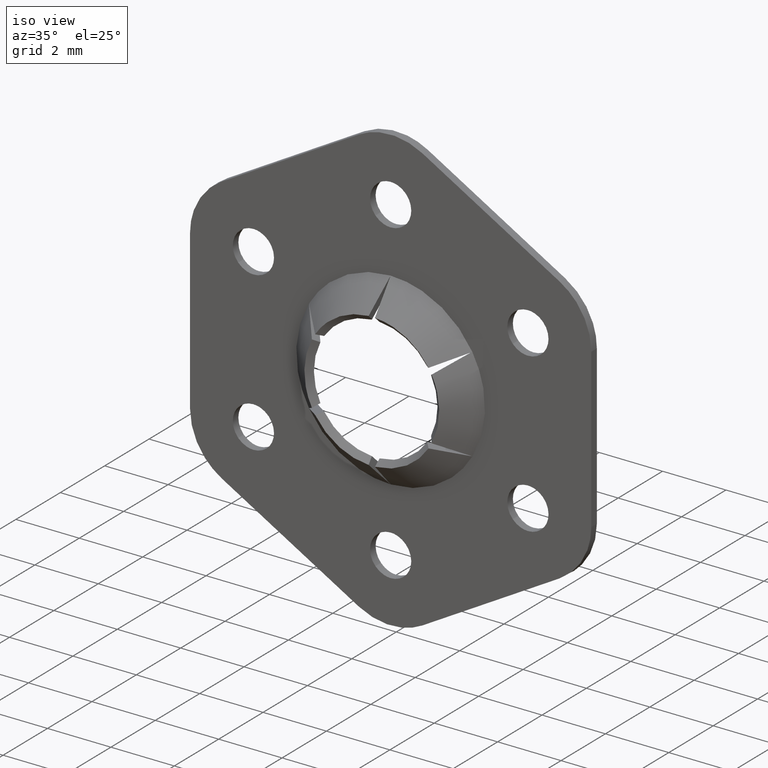
[diagram: clean part render]
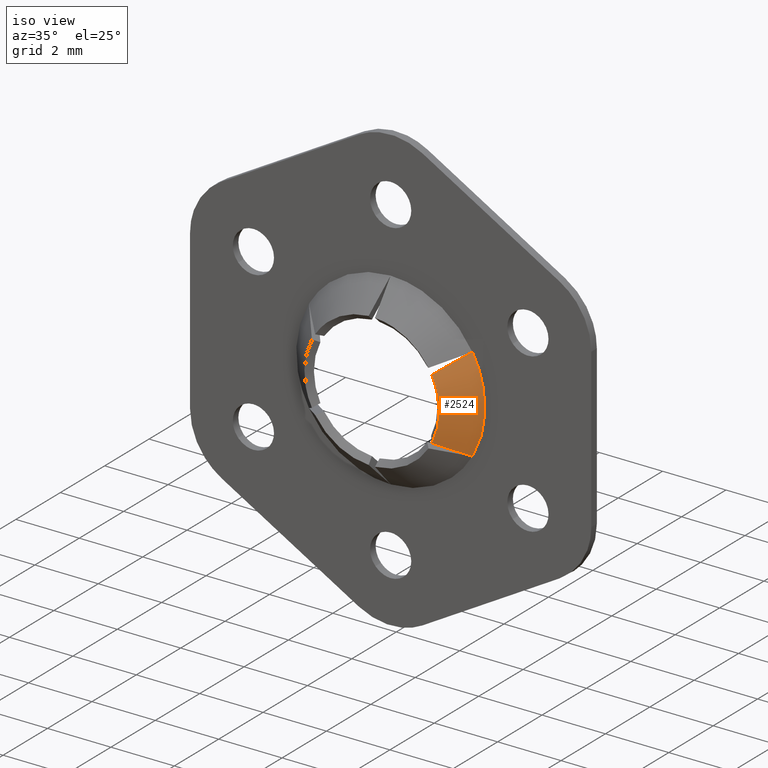
[diagram: same view with one face highlighted and labeled with its STEP entity id]
A machine part, iso view. The second image highlights one B-rep face of the part: STEP entity #2524.
In plain terms, the highlighted face is a freeform B-spline surface patch.
Its self-contained STEP definition (entity closure, byte-faithful):
#1563=CARTESIAN_POINT('',(2.577964239538090,-0.249999999998793,-1.488388347658600));
#1564=VERTEX_POINT('',#1563);
#1565=CARTESIAN_POINT('',(1.889805515215465,-1.100000000000000,-0.975609669087775));
#1566=VERTEX_POINT('',#1565);
#1567=CARTESIAN_POINT('',(2.577964239538090,-0.249999999998793,-1.488388347658600));
#1568=CARTESIAN_POINT('',(2.348891921161704,-0.533728600864767,-1.317696039964877));
#1569=CARTESIAN_POINT('',(2.119632591761006,-0.817221731978935,-1.146864381765905));
#1570=CARTESIAN_POINT('',(1.889805515215463,-1.100000000000000,-0.975609669087777));
#1571=QUASI_UNIFORM_CURVE('',3,(#1567,#1568,#1569,#1570),.UNSPECIFIED.,.F.,.U.);
#1572=EDGE_CURVE('',#1564,#1566,#1571,.T.);
#2471=CARTESIAN_POINT('',(1.789375178040802,-1.121250000000030,-1.109675239390785));
#2472=CARTESIAN_POINT('',(2.548314950930425,-0.228218749998763,-1.580329289195245));
#2473=CARTESIAN_POINT('',(2.491654914825467,-1.121250000000030,0.022765932977275));
#2474=CARTESIAN_POINT('',(3.548457333001089,-0.228218749998763,0.032421801805360));
#2475=CARTESIAN_POINT('',(1.768800210792290,-1.121250000000030,1.142185833832086));
#2476=CARTESIAN_POINT('',(2.519013383937809,-0.228218749998763,1.626628821509710));
#2484=(BOUNDED_SURFACE()B_SPLINE_SURFACE(1,2,((#2471,#2473,#2475),(#2472,#2474,#2476)),.UNSPECIFIED.,.F.,.F.,.U.)B_SPLINE_SURFACE_WITH_KNOTS((2,2),(3,3),(0.0,1.0),(0.0,3.476529003573445),.UNSPECIFIED.)GEOMETRIC_REPRESENTATION_ITEM()RATIONAL_B_SPLINE_SURFACE(((1.0,0.844263257211363,0.998266083634709),(1.0,0.844263257211363,0.998266083634709)))REPRESENTATION_ITEM('')SURFACE());
#2485=CARTESIAN_POINT('',(1.889805515215530,-1.100000000000000,0.975609669087646));
#2486=VERTEX_POINT('',#2485);
#2487=CARTESIAN_POINT('',(2.577964239538090,-0.249999999998844,1.488388347658500));
#2488=VERTEX_POINT('',#2487);
#2489=CARTESIAN_POINT('',(1.889805515215530,-1.100000000000001,0.975609669087647));
#2490=CARTESIAN_POINT('',(2.119632591761051,-0.817221731978953,1.146864381765786));
#2491=CARTESIAN_POINT('',(2.348891921161727,-0.533728600864801,1.317696039964766));
#2492=CARTESIAN_POINT('',(2.577964239538085,-0.249999999998837,1.488388347658496));
#2493=QUASI_UNIFORM_CURVE('',3,(#2489,#2490,#2491,#2492),.UNSPECIFIED.,.F.,.U.);
#2494=EDGE_CURVE('',#2486,#2488,#2493,.T.);
#2495=ORIENTED_EDGE('',*,*,#2494,.F.);
#2496=CARTESIAN_POINT('',(1.889805515215465,-1.100000000000000,-0.975609669087775));
#2497=CARTESIAN_POINT('',(1.964908444985976,-1.099999999999987,-0.830212094562802));
#2498=CARTESIAN_POINT('',(2.054979075191407,-1.100000000000017,-0.591572794895911));
#2499=CARTESIAN_POINT('',(2.119268404712452,-1.099999999999987,-0.243058084989664));
#2500=CARTESIAN_POINT('',(2.132837000953445,-1.100000000000005,0.037092747827672));
#2501=CARTESIAN_POINT('',(2.105703422835828,-1.099999999999989,0.353298678628974));
#2502=CARTESIAN_POINT('',(2.029391814734620,-1.100000000000015,0.667459307978458));
#2503=CARTESIAN_POINT('',(1.938239948597256,-1.099999999999990,0.881798338924710));
#2504=CARTESIAN_POINT('',(1.889805515215530,-1.100000000000000,0.975609669087646));
#2505=B_SPLINE_CURVE_WITH_KNOTS('',3,(#2496,#2497,#2498,#2499,#2500,#2501,#2502,#2503,#2504),.UNSPECIFIED.,.F.,.U.,(4,1,1,1,1,1,4),(4.278403E-009,0.490934858271371,0.760159400347399,1.061052742547380,1.330274561731588,1.710354834080079,2.027086262448293),.UNSPECIFIED.);
#2506=EDGE_CURVE('',#1566,#2486,#2505,.T.);
#2507=ORIENTED_EDGE('',*,*,#2506,.F.);
#2508=ORIENTED_EDGE('',*,*,#1572,.F.);
#2509=CARTESIAN_POINT('',(2.577964239538090,-0.249999999998793,-1.488388347658600));
#2510=CARTESIAN_POINT('',(2.667275369642743,-0.249999999999015,-1.333728970554541));
#2511=CARTESIAN_POINT('',(2.790533955382748,-0.249999999999321,-1.067444974597893));
#2512=CARTESIAN_POINT('',(2.903062345874344,-0.249999999999602,-0.685234246486280));
#2513=CARTESIAN_POINT('',(2.961385795815693,-0.249999999999751,-0.357071637803619));
#2514=CARTESIAN_POINT('',(2.989064810762092,-0.249999999999825,0.064847571411071));
#2515=CARTESIAN_POINT('',(2.943842491713601,-0.249999999999724,0.544180806968372));
#2516=CARTESIAN_POINT('',(2.798435450589244,-0.249999999999376,1.053257253145932));
#2517=CARTESIAN_POINT('',(2.659152541224343,-0.249999999999040,1.347787279102272));
#2518=CARTESIAN_POINT('',(2.577964239538090,-0.249999999998844,1.488388347658500));
#2519=B_SPLINE_CURVE_WITH_KNOTS('',3,(#2509,#2510,#2511,#2512,#2513,#2514,#2515,#2516,#2517,#2518),.UNSPECIFIED.,.F.,.U.,(4,1,1,1,1,1,1,4),(3.445016E-009,0.535781439595604,0.876736103735792,1.193336524024323,1.534289428408757,2.143130415264675,2.630207159630551,3.117281959204544),.UNSPECIFIED.);
#2520=EDGE_CURVE('',#1564,#2488,#2519,.T.);
#2521=ORIENTED_EDGE('',*,*,#2520,.T.);
#2522=EDGE_LOOP('',(#2495,#2507,#2508,#2521));
#2523=FACE_OUTER_BOUND('',#2522,.T.);
#2524=ADVANCED_FACE('',(#2523),#2484,.T.);